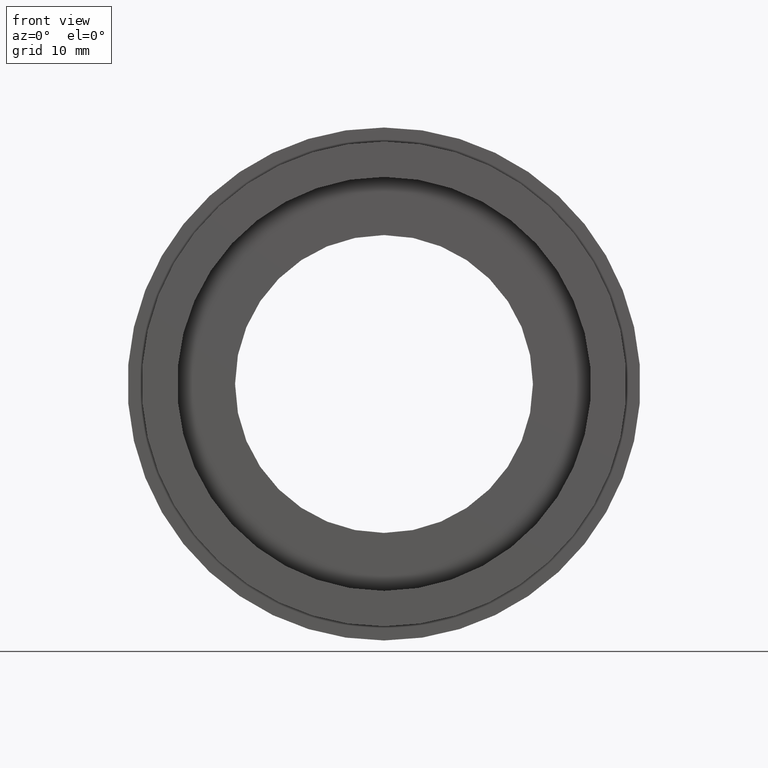
[diagram: clean part render]
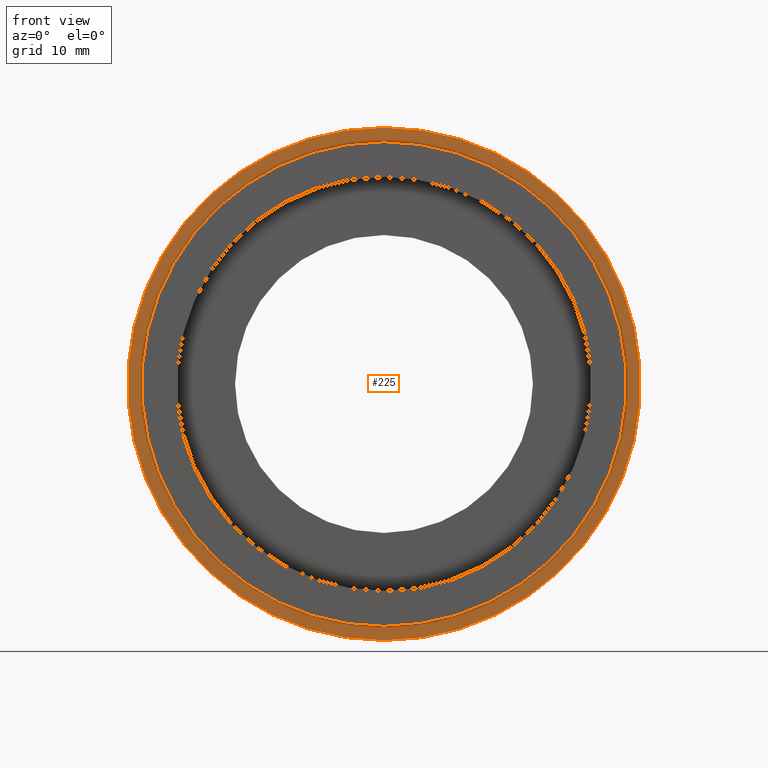
[diagram: same view with one face highlighted and labeled with its STEP entity id]
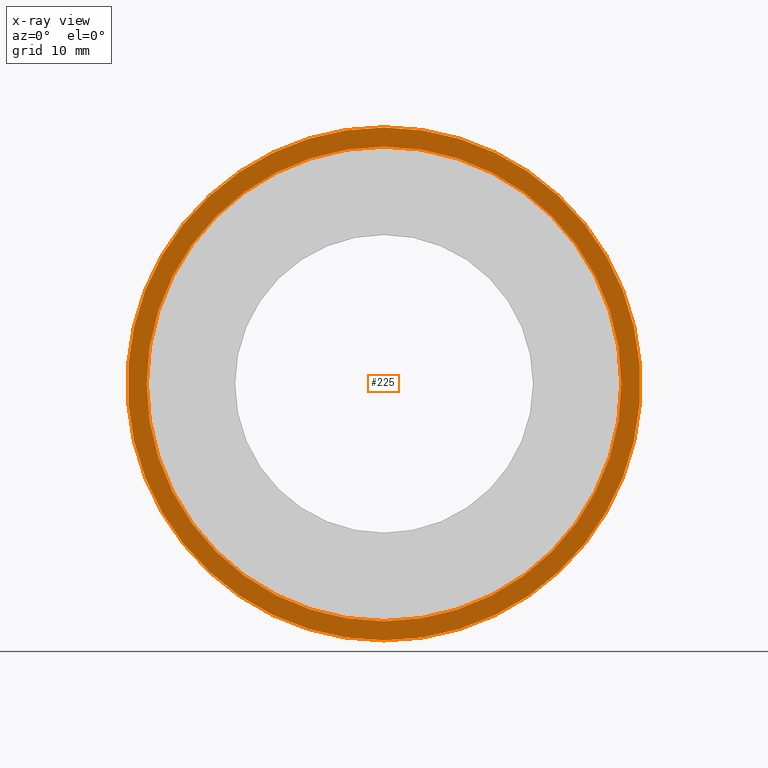
[diagram: x-ray of the same camera — body ghosted, the highlighted face saturated]
A machine part, front view. The second image highlights one B-rep face of the part: STEP entity #225.
The next image is the same camera in x-ray: the body ghosted, the highlighted face saturated — about 0% of this face is hidden behind the body in this view.
In plain terms, the highlighted planar face has unit normal (-0, 1, 0).
Its self-contained STEP definition (entity closure, byte-faithful):
#1 = DIRECTION ( 'NONE',  ( 0.0000000000000000000, 0.0000000000000000000, 1.000000000000000000 ) ) ;
#18 = DIRECTION ( 'NONE',  ( -0.0000000000000000000, 1.000000000000000000, -0.0000000000000000000 ) ) ;
#19 = CARTESIAN_POINT ( 'NONE',  ( 0.0000000000000000000, 5.000000000000000900, 0.0000000000000000000 ) ) ;
#31 = CARTESIAN_POINT ( 'NONE',  ( 0.0000000000000000000, 5.000000000000000900, 0.0000000000000000000 ) ) ;
#40 = CIRCLE ( 'NONE', #296, 25.39999999999999900 ) ;
#56 = CIRCLE ( 'NONE', #569, 25.39999999999999900 ) ;
#115 = VERTEX_POINT ( 'NONE', #567 ) ;
#153 = PLANE ( 'NONE',  #545 ) ;
#174 = VERTEX_POINT ( 'NONE', #353 ) ;
#177 = DIRECTION ( 'NONE',  ( 0.0000000000000000000, 0.0000000000000000000, 1.000000000000000000 ) ) ;
#185 = EDGE_LOOP ( 'NONE', ( #204, #335 ) ) ;
#189 = CARTESIAN_POINT ( 'NONE',  ( 2.877919977996280300E-015, 5.000000000000000900, -23.50000000000000000 ) ) ;
#204 = ORIENTED_EDGE ( 'NONE', *, *, #363, .T. ) ;
#225 = ADVANCED_FACE ( 'NONE', ( #519, #476 ), #153, .F. ) ;
#239 = ORIENTED_EDGE ( 'NONE', *, *, #418, .F. ) ;
#259 = EDGE_CURVE ( 'NONE', #376, #115, #477, .T. ) ;
#263 = DIRECTION ( 'NONE',  ( -0.0000000000000000000, 1.000000000000000000, -0.0000000000000000000 ) ) ;
#264 = AXIS2_PLACEMENT_3D ( 'NONE', #31, #406, #531 ) ;
#272 = CIRCLE ( 'NONE', #264, 23.50000000000000000 ) ;
#296 = AXIS2_PLACEMENT_3D ( 'NONE', #484, #263, #1 ) ;
#320 = EDGE_CURVE ( 'NONE', #535, #174, #40, .T. ) ;
#325 = DIRECTION ( 'NONE',  ( 0.0000000000000000000, 0.0000000000000000000, 1.000000000000000000 ) ) ;
#335 = ORIENTED_EDGE ( 'NONE', *, *, #259, .T. ) ;
#353 = CARTESIAN_POINT ( 'NONE',  ( 3.110602869834276900E-015, 5.000000000000000900, -25.39999999999999900 ) ) ;
#363 = EDGE_CURVE ( 'NONE', #115, #376, #272, .T. ) ;
#376 = VERTEX_POINT ( 'NONE', #189 ) ;
#380 = CARTESIAN_POINT ( 'NONE',  ( 0.0000000000000000000, 5.000000000000000900, 0.0000000000000000000 ) ) ;
#406 = DIRECTION ( 'NONE',  ( -0.0000000000000000000, 1.000000000000000000, -0.0000000000000000000 ) ) ;
#418 = EDGE_CURVE ( 'NONE', #174, #535, #56, .T. ) ;
#436 = ORIENTED_EDGE ( 'NONE', *, *, #320, .F. ) ;
#447 = CARTESIAN_POINT ( 'NONE',  ( 25.39999999999999900, 5.000000000000000900, 0.0000000000000000000 ) ) ;
#448 = DIRECTION ( 'NONE',  ( 0.0000000000000000000, 0.0000000000000000000, 1.000000000000000000 ) ) ;
#476 = FACE_BOUND ( 'NONE', #185, .T. ) ;
#477 = CIRCLE ( 'NONE', #583, 23.50000000000000000 ) ;
#484 = CARTESIAN_POINT ( 'NONE',  ( 0.0000000000000000000, 5.000000000000000900, 0.0000000000000000000 ) ) ;
#519 = FACE_OUTER_BOUND ( 'NONE', #598, .T. ) ;
#525 = DIRECTION ( 'NONE',  ( -0.0000000000000000000, 1.000000000000000000, -0.0000000000000000000 ) ) ;
#531 = DIRECTION ( 'NONE',  ( 0.0000000000000000000, 0.0000000000000000000, 1.000000000000000000 ) ) ;
#535 = VERTEX_POINT ( 'NONE', #570 ) ;
#545 = AXIS2_PLACEMENT_3D ( 'NONE', #447, #603, #448 ) ;
#567 = CARTESIAN_POINT ( 'NONE',  ( 0.0000000000000000000, 5.000000000000000900, 23.50000000000000000 ) ) ;
#569 = AXIS2_PLACEMENT_3D ( 'NONE', #380, #525, #177 ) ;
#570 = CARTESIAN_POINT ( 'NONE',  ( 0.0000000000000000000, 5.000000000000000900, 25.39999999999999900 ) ) ;
#583 = AXIS2_PLACEMENT_3D ( 'NONE', #19, #18, #325 ) ;
#598 = EDGE_LOOP ( 'NONE', ( #436, #239 ) ) ;
#603 = DIRECTION ( 'NONE',  ( -0.0000000000000000000, 1.000000000000000000, 0.0000000000000000000 ) ) ;